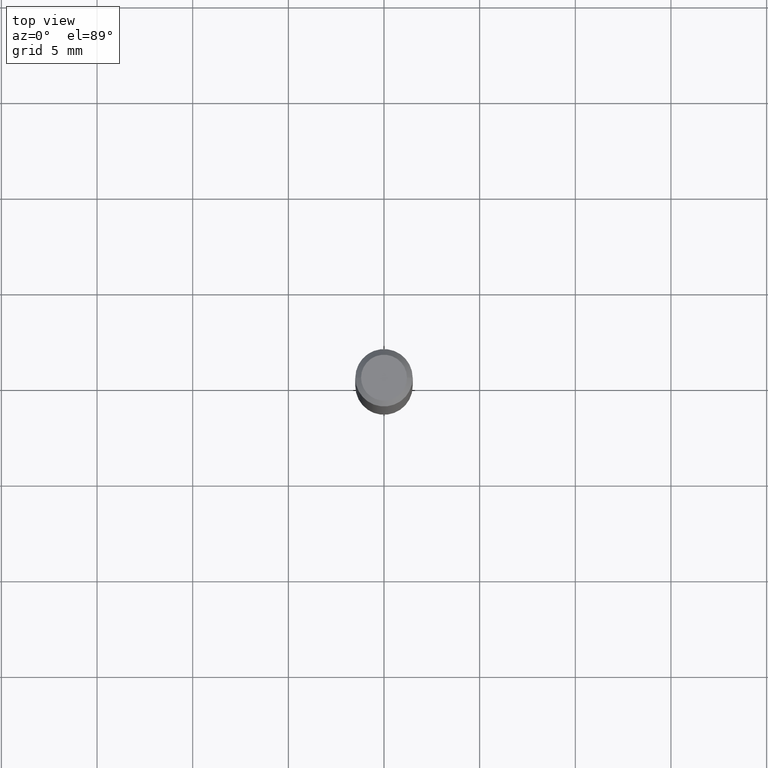
[diagram: clean part render]
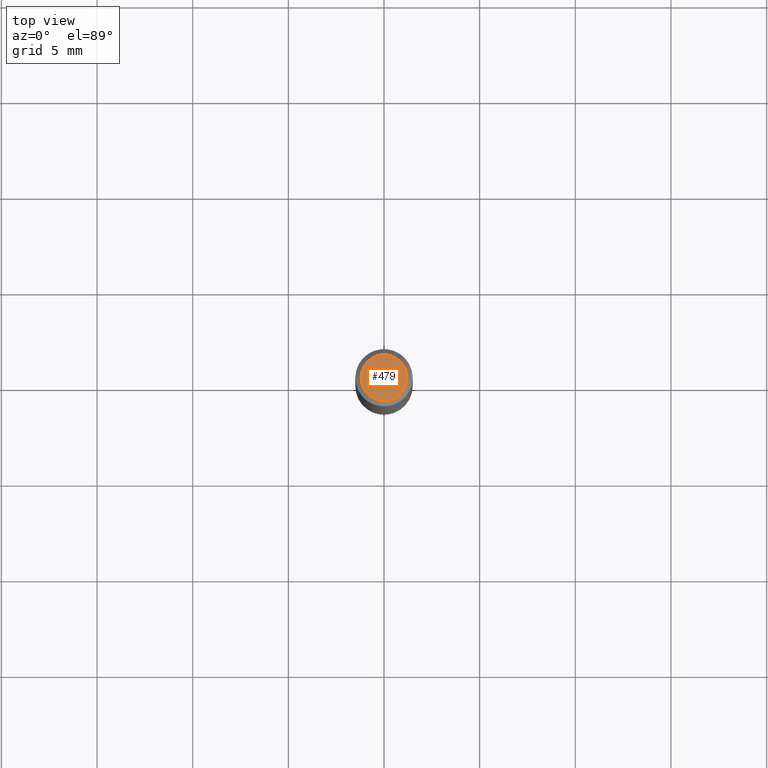
[diagram: same view with one face highlighted and labeled with its STEP entity id]
A machine part, top view. The second image highlights one B-rep face of the part: STEP entity #479.
In plain terms, the highlighted planar face has unit normal (0, -0, -1).
Its self-contained STEP definition (entity closure, byte-faithful):
#34 = EDGE_CURVE ( 'NONE', #347, #56, #79, .T. ) ;
#56 = VERTEX_POINT ( 'NONE', #295 ) ;
#70 = CARTESIAN_POINT ( 'NONE',  ( -0.04724000000000000421, 3.504923541997677355E-16, -3.380025165670481712E-19 ) ) ;
#79 = CIRCLE ( 'NONE', #418, 0.04724000000000000421 ) ;
#80 = CARTESIAN_POINT ( 'NONE',  ( 8.265746106709734507E-48, -1.180129479067563789E-33, -3.380025165646692144E-19 ) ) ;
#86 = DIRECTION ( 'NONE',  ( 1.000000000000000000, -6.982962677686266711E-15, 4.876185090822587894E-29 ) ) ;
#117 = AXIS2_PLACEMENT_3D ( 'NONE', #349, #303, #86 ) ;
#124 = DIRECTION ( 'NONE',  ( -2.445468806185136597E-29, 3.491481338843145583E-15, 1.000000000000000000 ) ) ;
#153 = EDGE_LOOP ( 'NONE', ( #442, #411 ) ) ;
#154 = EDGE_CURVE ( 'NONE', #56, #347, #335, .T. ) ;
#188 = AXIS2_PLACEMENT_3D ( 'NONE', #415, #406, #461 ) ;
#262 = FACE_OUTER_BOUND ( 'NONE', #153, .T. ) ;
#295 = CARTESIAN_POINT ( 'NONE',  ( 0.04724000000000000421, -3.852183633974369345E-16, -3.380025165621689721E-19 ) ) ;
#303 = DIRECTION ( 'NONE',  ( -2.445468806185136597E-29, 3.491481338843145583E-15, 1.000000000000000000 ) ) ;
#322 = PLANE ( 'NONE',  #188 ) ;
#335 = CIRCLE ( 'NONE', #117, 0.04724000000000000421 ) ;
#339 = DIRECTION ( 'NONE',  ( 1.000000000000000000, -6.982962677686266711E-15, 4.876185090822587894E-29 ) ) ;
#347 = VERTEX_POINT ( 'NONE', #70 ) ;
#349 = CARTESIAN_POINT ( 'NONE',  ( 8.265746106709734507E-48, -1.180129479067563789E-33, -3.380025165646692144E-19 ) ) ;
#406 = DIRECTION ( 'NONE',  ( 2.438088387897960049E-29, -3.491481338843145188E-15, -1.000000000000000000 ) ) ;
#411 = ORIENTED_EDGE ( 'NONE', *, *, #154, .T. ) ;
#415 = CARTESIAN_POINT ( 'NONE',  ( 4.132873053354867254E-48, -5.900647395337818946E-34, -1.690012582823346072E-19 ) ) ;
#418 = AXIS2_PLACEMENT_3D ( 'NONE', #80, #124, #339 ) ;
#442 = ORIENTED_EDGE ( 'NONE', *, *, #34, .T. ) ;
#461 = DIRECTION ( 'NONE',  ( -1.000000000000000000, 6.982962677686265922E-15, -4.876176775795935793E-29 ) ) ;
#479 = ADVANCED_FACE ( 'NONE', ( #262 ), #322, .F. ) ;